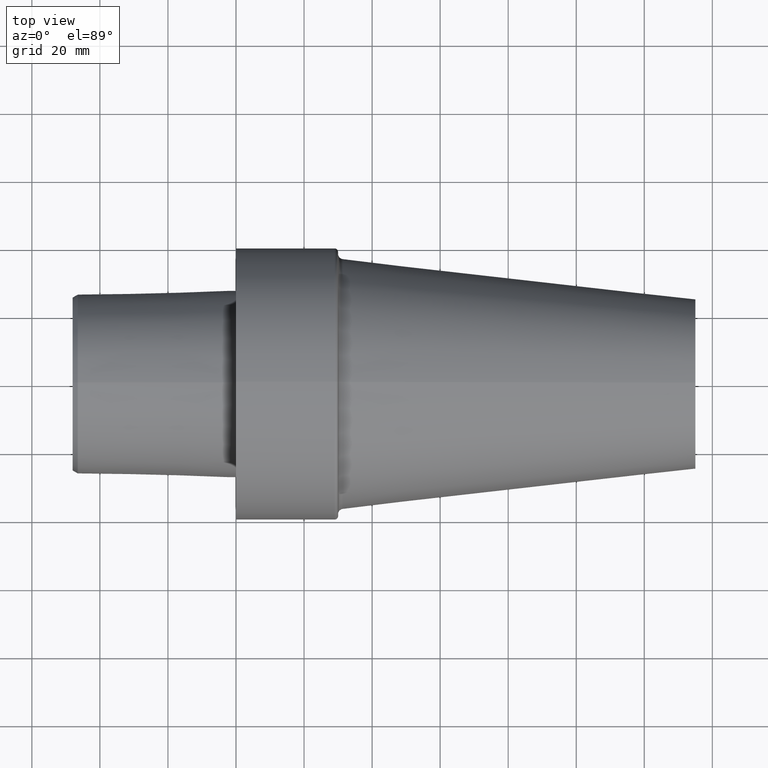
[diagram: clean part render]
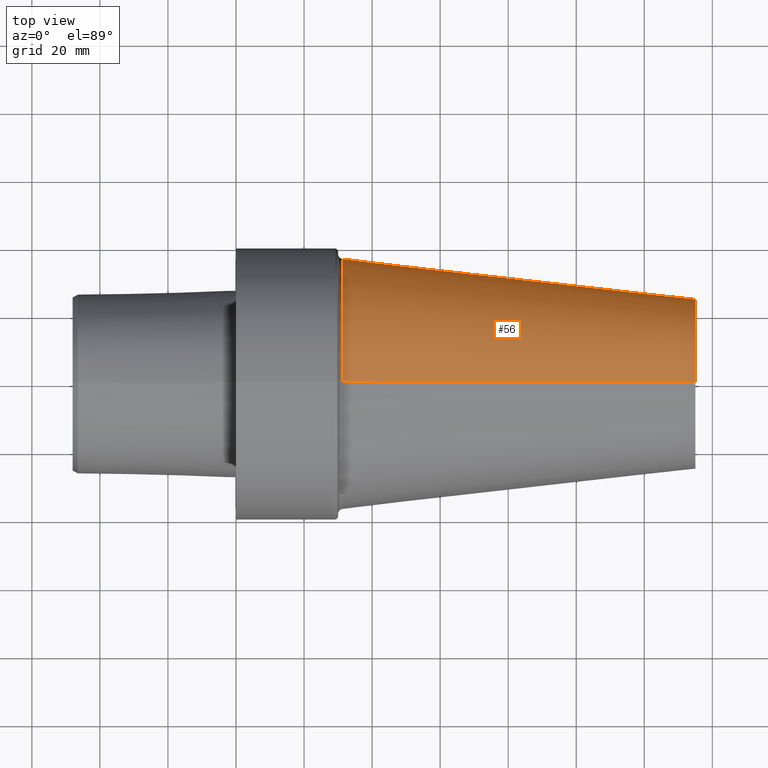
[diagram: same view with one face highlighted and labeled with its STEP entity id]
A machine part, top view. The second image highlights one B-rep face of the part: STEP entity #56.
In plain terms, the highlighted conical surface has half-angle 6.52 deg.
Its self-contained STEP definition (entity closure, byte-faithful):
#6 = VECTOR ( 'NONE', #359, 1000.000000000000114 ) ;
#51 = ORIENTED_EDGE ( 'NONE', *, *, #290, .F. ) ;
#56 = ADVANCED_FACE ( 'NONE', ( #304 ), #385, .T. ) ;
#67 = CARTESIAN_POINT ( 'NONE',  ( 134.9999998623000010, 3.787099996474778961E-15, -24.99999997449999967 ) ) ;
#92 = CARTESIAN_POINT ( 'NONE',  ( 31.32968007804372235, 0.000000000000000000, 0.000000000000000000 ) ) ;
#96 = AXIS2_PLACEMENT_3D ( 'NONE', #349, #511, #143 ) ;
#123 = CARTESIAN_POINT ( 'NONE',  ( 31.32968007804372235, 0.000000000000000000, 36.84803652241500060 ) ) ;
#136 = DIRECTION ( 'NONE',  ( 0.000000000000000000, 0.000000000000000000, 1.000000000000000000 ) ) ;
#143 = DIRECTION ( 'NONE',  ( 0.000000000000000000, 0.000000000000000000, 1.000000000000000000 ) ) ;
#168 = VERTEX_POINT ( 'NONE', #67 ) ;
#180 = LINE ( 'NONE', #344, #311 ) ;
#195 = CARTESIAN_POINT ( 'NONE',  ( 134.9999998623000010, 0.000000000000000000, 24.99999997449999967 ) ) ;
#199 = CIRCLE ( 'NONE', #238, 24.99999997449999967 ) ;
#205 = ORIENTED_EDGE ( 'NONE', *, *, #365, .T. ) ;
#214 = VERTEX_POINT ( 'NONE', #521 ) ;
#238 = AXIS2_PLACEMENT_3D ( 'NONE', #539, #417, #136 ) ;
#266 = DIRECTION ( 'NONE',  ( -0.9935326726551686471, 1.390544694323235530E-17, -0.1135465911715431570 ) ) ;
#290 = EDGE_CURVE ( 'NONE', #214, #354, #361, .T. ) ;
#304 = FACE_OUTER_BOUND ( 'NONE', #335, .T. ) ;
#311 = VECTOR ( 'NONE', #266, 1000.000000000000114 ) ;
#327 = ORIENTED_EDGE ( 'NONE', *, *, #331, .F. ) ;
#331 = EDGE_CURVE ( 'NONE', #354, #404, #475, .T. ) ;
#332 = DIRECTION ( 'NONE',  ( 0.000000000000000000, 0.000000000000000000, 1.000000000000000000 ) ) ;
#335 = EDGE_LOOP ( 'NONE', ( #205, #358, #327, #51 ) ) ;
#344 = CARTESIAN_POINT ( 'NONE',  ( 134.9999998623000010, 3.061616994745535943E-15, -24.99999997449999967 ) ) ;
#349 = CARTESIAN_POINT ( 'NONE',  ( 134.9999998623000010, 0.000000000000000000, 0.000000000000000000 ) ) ;
#354 = VERTEX_POINT ( 'NONE', #123 ) ;
#358 = ORIENTED_EDGE ( 'NONE', *, *, #498, .T. ) ;
#359 = DIRECTION ( 'NONE',  ( -0.9935326726551686471, 0.000000000000000000, 0.1135465911715431570 ) ) ;
#361 = LINE ( 'NONE', #195, #6 ) ;
#365 = EDGE_CURVE ( 'NONE', #214, #168, #199, .T. ) ;
#385 = CONICAL_SURFACE ( 'NONE', #96, 24.99999997449999967, 0.1137920071545894807 ) ;
#404 = VERTEX_POINT ( 'NONE', #422 ) ;
#417 = DIRECTION ( 'NONE',  ( -1.000000000000000000, 0.000000000000000000, 0.000000000000000000 ) ) ;
#422 = CARTESIAN_POINT ( 'NONE',  ( 31.32968007804372235, 4.512582998204022373E-15, -36.84803652241500060 ) ) ;
#459 = DIRECTION ( 'NONE',  ( -1.000000000000000000, 0.000000000000000000, 0.000000000000000000 ) ) ;
#475 = CIRCLE ( 'NONE', #500, 36.84803652241500060 ) ;
#498 = EDGE_CURVE ( 'NONE', #168, #404, #180, .T. ) ;
#500 = AXIS2_PLACEMENT_3D ( 'NONE', #92, #459, #332 ) ;
#511 = DIRECTION ( 'NONE',  ( -1.000000000000000000, 0.000000000000000000, 0.000000000000000000 ) ) ;
#521 = CARTESIAN_POINT ( 'NONE',  ( 134.9999998623000010, 0.000000000000000000, 24.99999997449999967 ) ) ;
#539 = CARTESIAN_POINT ( 'NONE',  ( 134.9999998623000010, 0.000000000000000000, 0.000000000000000000 ) ) ;